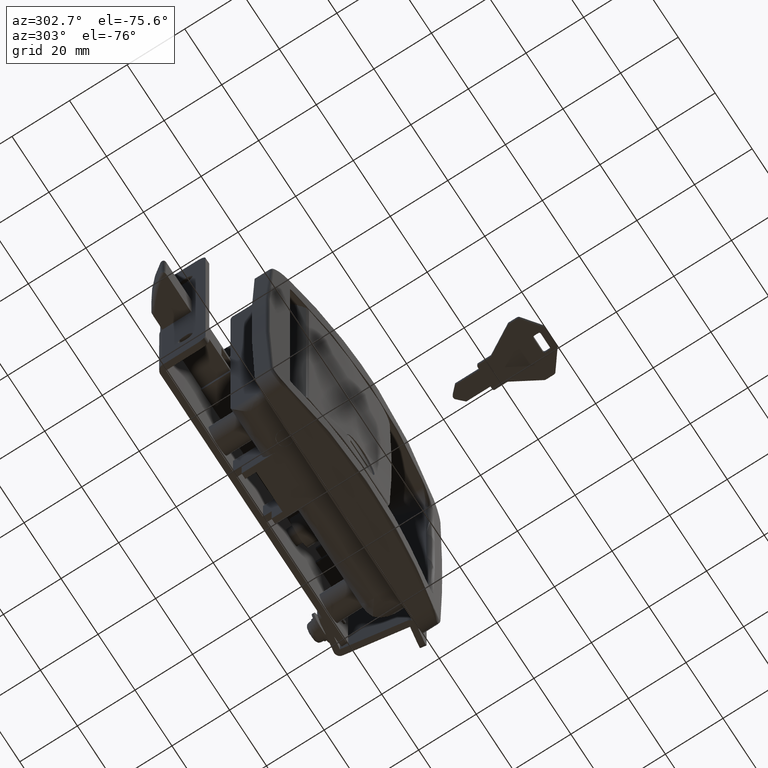
[diagram: clean part render]
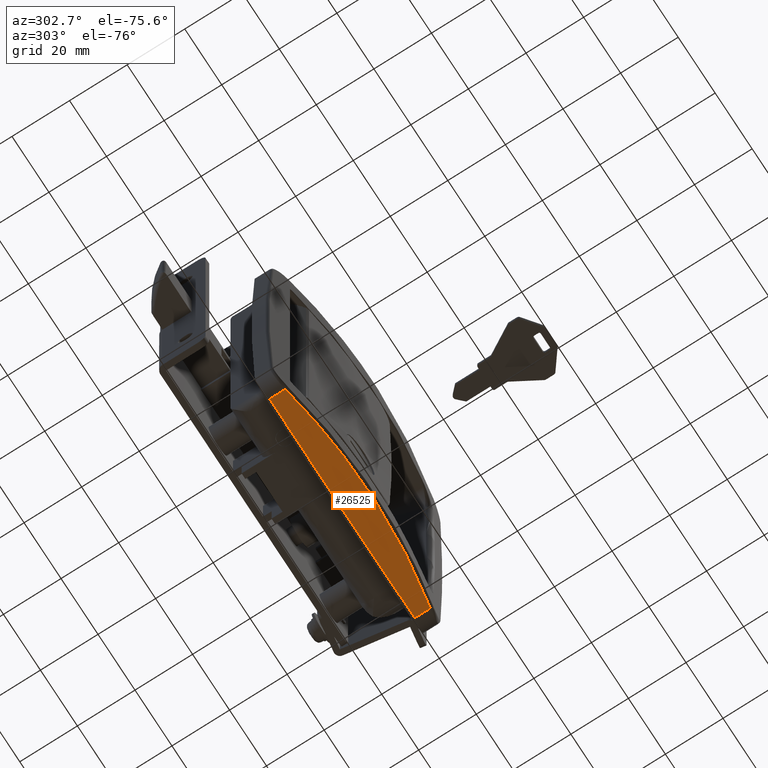
[diagram: same view with one face highlighted and labeled with its STEP entity id]
A machine part, auxiliary view. The second image highlights one B-rep face of the part: STEP entity #26525.
In plain terms, the highlighted face is a freeform B-spline surface patch.
Its self-contained STEP definition (entity closure, byte-faithful):
#23616=CARTESIAN_POINT('',(8.270173018109309,-5.417433262248970,-63.973311056229797));
#23617=VERTEX_POINT('',#23616);
#24006=CARTESIAN_POINT('',(86.729826981894206,-5.417433262242640,-63.973311056265111));
#24007=VERTEX_POINT('',#24006);
#24031=CARTESIAN_POINT('',(86.729826981894206,-5.417433262242640,-63.973311056265111));
#24032=CARTESIAN_POINT('',(79.687884863613817,-6.900411787224127,-64.346248641450856));
#24033=CARTESIAN_POINT('',(68.888788215359057,-8.540098418687524,-64.758594985309074));
#24034=CARTESIAN_POINT('',(52.447151228054082,-9.606979570430688,-65.026892923345045));
#24035=CARTESIAN_POINT('',(33.280815025958830,-9.452112882004856,-64.987947242171003));
#24036=CARTESIAN_POINT('',(17.927647870838360,-7.451553986184043,-64.484849192483949));
#24037=CARTESIAN_POINT('',(8.270173018109309,-5.417433262248970,-63.973311056229797));
#24038=B_SPLINE_CURVE_WITH_KNOTS('',3,(#24031,#24032,#24033,#24034,#24035,#24036,#24037),.UNSPECIFIED.,.F.,.U.,(4,1,1,1,4),(6.002068E-009,21.618139403879312,32.736057415965263,49.412887967541081,79.060621473322769),.UNSPECIFIED.);
#24039=EDGE_CURVE('',#24007,#23617,#24038,.T.);
#26342=CARTESIAN_POINT('',(86.729826981894206,-3.197442E-011,-63.973311056265111));
#26343=VERTEX_POINT('',#26342);
#26356=CARTESIAN_POINT('',(8.270173018109309,-3.197442E-011,-63.973311056229797));
#26357=VERTEX_POINT('',#26356);
#26358=CARTESIAN_POINT('',(8.270173018109309,-3.197442E-011,-63.973311056229797));
#26359=CARTESIAN_POINT('',(47.500000000000242,-3.197442E-011,-66.028096323373248));
#26360=CARTESIAN_POINT('',(86.729826981894206,-3.197442E-011,-63.973311056265111));
#26368=(BOUNDED_CURVE()B_SPLINE_CURVE(2,(#26358,#26359,#26360),.UNSPECIFIED.,.F.,.U.)CURVE()GEOMETRIC_REPRESENTATION_ITEM()QUASI_UNIFORM_CURVE()RATIONAL_B_SPLINE_CURVE((1.0,0.998631081408697,1.0))REPRESENTATION_ITEM(''));
#26369=EDGE_CURVE('',#26357,#26343,#26368,.T.);
#26492=CARTESIAN_POINT('',(86.729826981894206,-3.197442E-011,-63.973311056265111));
#26493=CARTESIAN_POINT('',(86.729826981894206,-5.417433262242640,-63.973311056265111));
#26494=QUASI_UNIFORM_CURVE('',1,(#26492,#26493),.UNSPECIFIED.,.F.,.U.);
#26495=EDGE_CURVE('',#26343,#24007,#26494,.T.);
#26501=CARTESIAN_POINT('',(90.639882972396677,0.237500000502080,-63.758272406218616));
#26502=CARTESIAN_POINT('',(90.639882972396677,-9.743437521941539,-63.758272406218616));
#26503=CARTESIAN_POINT('',(47.497181481463087,0.237500000502080,-66.243949242129247));
#26504=CARTESIAN_POINT('',(47.497181481463087,-9.743437521941539,-66.243949242129247));
#26505=CARTESIAN_POINT('',(4.354498643280850,0.237500000502080,-63.757948680503823));
#26506=CARTESIAN_POINT('',(4.354498643280850,-9.743437521941537,-63.757948680503823));
#26514=(BOUNDED_SURFACE()B_SPLINE_SURFACE(1,2,((#26501,#26503,#26505),(#26502,#26504,#26506)),.UNSPECIFIED.,.F.,.F.,.U.)B_SPLINE_SURFACE_WITH_KNOTS((2,2),(3,3),(0.0,9.980937522443616),(15.798501841735840,102.170156605529800),.UNSPECIFIED.)GEOMETRIC_REPRESENTATION_ITEM()RATIONAL_B_SPLINE_SURFACE(((0.999009697481741,0.996605067675577,0.997506939755854),(0.999009697481741,0.996605067675577,0.997506939755854)))REPRESENTATION_ITEM('')SURFACE());
#26515=ORIENTED_EDGE('',*,*,#26495,.T.);
#26516=ORIENTED_EDGE('',*,*,#24039,.T.);
#26517=CARTESIAN_POINT('',(8.270173018109309,-3.197442E-011,-63.973311056229797));
#26518=CARTESIAN_POINT('',(8.270173018109309,-5.417433262248970,-63.973311056229797));
#26519=QUASI_UNIFORM_CURVE('',1,(#26517,#26518),.UNSPECIFIED.,.F.,.U.);
#26520=EDGE_CURVE('',#26357,#23617,#26519,.T.);
#26521=ORIENTED_EDGE('',*,*,#26520,.F.);
#26522=ORIENTED_EDGE('',*,*,#26369,.T.);
#26523=EDGE_LOOP('',(#26515,#26516,#26521,#26522));
#26524=FACE_OUTER_BOUND('',#26523,.T.);
#26525=ADVANCED_FACE('',(#26524),#26514,.T.);